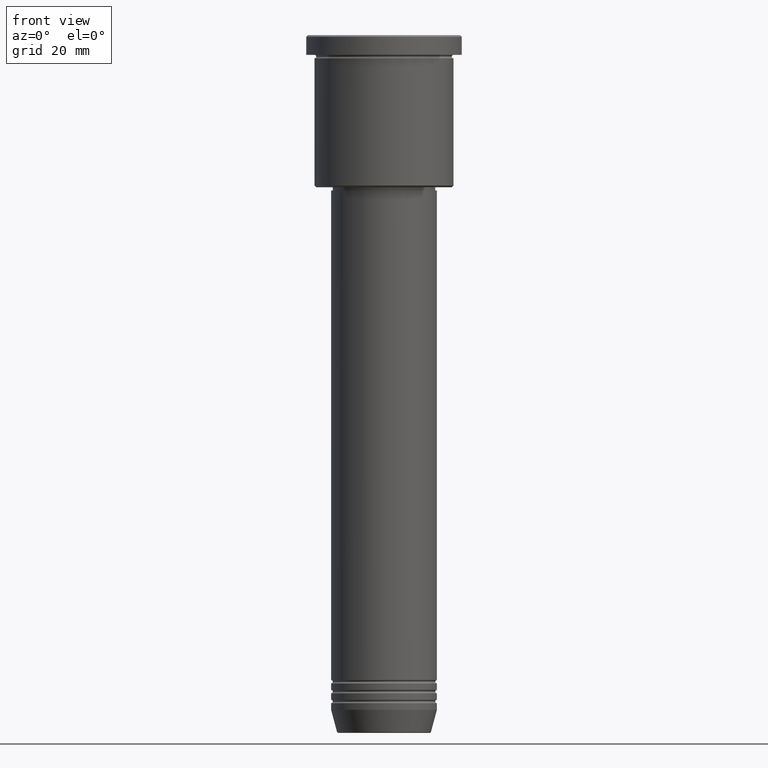
[diagram: clean part render]
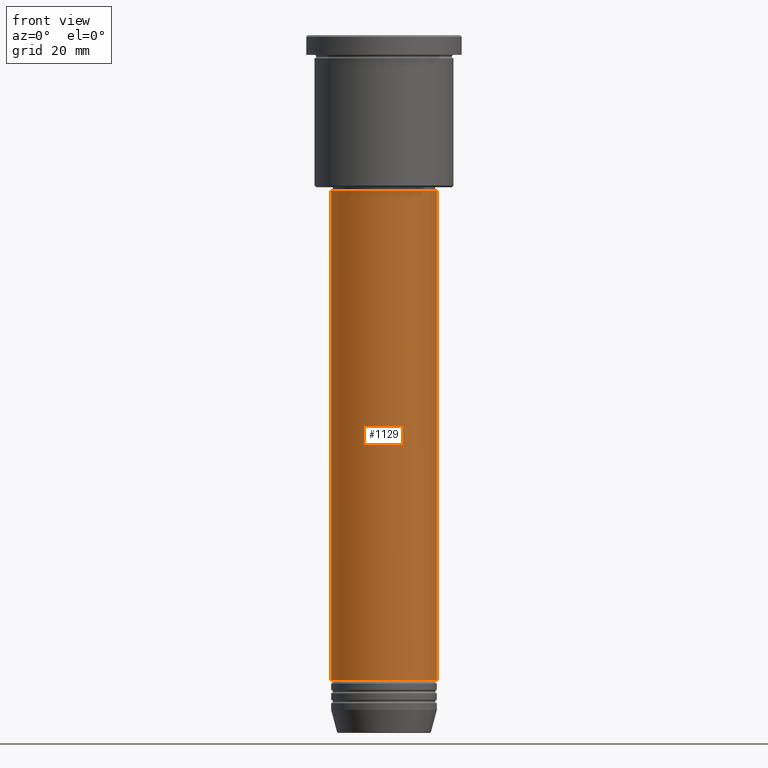
[diagram: same view with one face highlighted and labeled with its STEP entity id]
A machine part, front view. The second image highlights one B-rep face of the part: STEP entity #1129.
In plain terms, the highlighted cylindrical surface (partial cylindrical patch) has radius 16 mm, axis along (-0, -0, 1).
Its self-contained STEP definition (entity closure, byte-faithful):
#75 = DIRECTION ( 'NONE',  ( -0.000000000000000000, -0.000000000000000000, 1.000000000000000000 ) ) ;
#129 = VERTEX_POINT ( 'NONE', #145 ) ;
#134 = CARTESIAN_POINT ( 'NONE',  ( -16.00000000000000000, 1.959434878635765131E-15, -195.0000000000000000 ) ) ;
#145 = CARTESIAN_POINT ( 'NONE',  ( 16.00000000000000000, 0.000000000000000000, -195.0000000000000000 ) ) ;
#169 = LINE ( 'NONE', #1180, #938 ) ;
#210 = AXIS2_PLACEMENT_3D ( 'NONE', #1167, #75, #711 ) ;
#212 = CARTESIAN_POINT ( 'NONE',  ( 16.00000000000000000, 0.000000000000000000, -47.00000000000002132 ) ) ;
#215 = CARTESIAN_POINT ( 'NONE',  ( 16.00000000000000000, 0.000000000000000000, 0.000000000000000000 ) ) ;
#223 = DIRECTION ( 'NONE',  ( -0.000000000000000000, -0.000000000000000000, 1.000000000000000000 ) ) ;
#271 = ORIENTED_EDGE ( 'NONE', *, *, #698, .F. ) ;
#287 = LINE ( 'NONE', #215, #474 ) ;
#333 = DIRECTION ( 'NONE',  ( -0.000000000000000000, -0.000000000000000000, 1.000000000000000000 ) ) ;
#358 = DIRECTION ( 'NONE',  ( -0.000000000000000000, -0.000000000000000000, 1.000000000000000000 ) ) ;
#364 = VERTEX_POINT ( 'NONE', #134 ) ;
#474 = VECTOR ( 'NONE', #223, 1000.000000000000000 ) ;
#476 = DIRECTION ( 'NONE',  ( 1.000000000000000000, 0.000000000000000000, 0.000000000000000000 ) ) ;
#502 = FACE_OUTER_BOUND ( 'NONE', #941, .T. ) ;
#541 = ORIENTED_EDGE ( 'NONE', *, *, #1022, .T. ) ;
#570 = CARTESIAN_POINT ( 'NONE',  ( 0.000000000000000000, 0.000000000000000000, -47.00000000000002132 ) ) ;
#639 = CARTESIAN_POINT ( 'NONE',  ( -16.00000000000000000, 1.959434878635765131E-15, -47.00000000000002132 ) ) ;
#676 = ORIENTED_EDGE ( 'NONE', *, *, #1115, .F. ) ;
#698 = EDGE_CURVE ( 'NONE', #364, #1075, #169, .T. ) ;
#711 = DIRECTION ( 'NONE',  ( 1.000000000000000000, 0.000000000000000000, 0.000000000000000000 ) ) ;
#749 = EDGE_CURVE ( 'NONE', #364, #129, #1123, .T. ) ;
#798 = CARTESIAN_POINT ( 'NONE',  ( 0.000000000000000000, 0.000000000000000000, 0.000000000000000000 ) ) ;
#873 = DIRECTION ( 'NONE',  ( 1.000000000000000000, 0.000000000000000000, 0.000000000000000000 ) ) ;
#934 = ORIENTED_EDGE ( 'NONE', *, *, #749, .T. ) ;
#938 = VECTOR ( 'NONE', #358, 1000.000000000000000 ) ;
#939 = DIRECTION ( 'NONE',  ( -0.000000000000000000, -0.000000000000000000, 1.000000000000000000 ) ) ;
#941 = EDGE_LOOP ( 'NONE', ( #271, #934, #541, #676 ) ) ;
#976 = AXIS2_PLACEMENT_3D ( 'NONE', #798, #333, #873 ) ;
#1016 = VERTEX_POINT ( 'NONE', #212 ) ;
#1022 = EDGE_CURVE ( 'NONE', #129, #1016, #287, .T. ) ;
#1023 = AXIS2_PLACEMENT_3D ( 'NONE', #570, #939, #476 ) ;
#1047 = CYLINDRICAL_SURFACE ( 'NONE', #976, 16.00000000000000000 ) ;
#1075 = VERTEX_POINT ( 'NONE', #639 ) ;
#1089 = CIRCLE ( 'NONE', #1023, 16.00000000000000000 ) ;
#1115 = EDGE_CURVE ( 'NONE', #1075, #1016, #1089, .T. ) ;
#1123 = CIRCLE ( 'NONE', #210, 16.00000000000000000 ) ;
#1129 = ADVANCED_FACE ( 'NONE', ( #502 ), #1047, .T. ) ;
#1167 = CARTESIAN_POINT ( 'NONE',  ( 0.000000000000000000, 0.000000000000000000, -195.0000000000000000 ) ) ;
#1180 = CARTESIAN_POINT ( 'NONE',  ( -16.00000000000000000, 1.959434878635765131E-15, 0.000000000000000000 ) ) ;